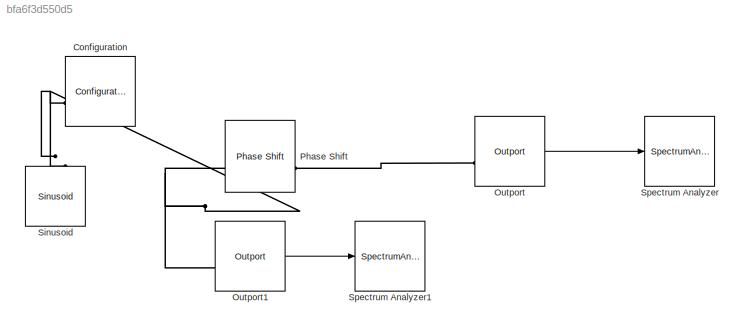
MODEL slx_bfa6f3d550d5
KIND model
CONFIG AbsTol = auto
CONFIG EnableMultiTasking = off
CONFIG FixedStep = auto
CONFIG MaxStep = auto
CONFIG MinStep = auto
CONFIG RelTol = 1e-3
CONFIG SampleTimeConstraint = Unconstrained
CONFIG SolverName = VariableStepAuto
CONFIG StartTime = 0.0
CONFIG StopTime = 1
BLOCK [Reference] Configuration  REF=simrfV2util1/Configuration
  SourceBlock = simrfV2util1/Configuration
  SourceType = Configuration
BLOCK [Reference] Outport  REF=simrfV2util1/Outport
  SourceBlock = simrfV2util1/Outport
  SourceType = Outport
BLOCK [Reference] Outport1  REF=simrfV2util1/Outport
  SourceBlock = simrfV2util1/Outport
  SourceType = Outport
BLOCK [Reference] Phase Shift  REF=simrfV2elements/Phase Shift
  SourceBlock = simrfV2elements/Phase Shift
  SourceType = Phase Shift
BLOCK [Reference] Sinusoid  REF=simrfV2sources1/Sinusoid
  NameLocation = right
  SourceBlock = simrfV2sources1/Sinusoid
  SourceType = Sinusoidal Source
BLOCK [SpectrumAnalyzer] Spectrum Analyzer
  AllowFFTLengthLessThanSamplesPerUpdate = on
  AveragingMethod = Exponential
  GraphicalSettings = {"GraphicalSettings":{"Style":{"BackgroundColor":[0.12941176470588237,0.12941176470588237,0.12941176470588237],"AxesColor":[0,0,0],"LabelsColor":[0.6862745098039216,0.6862745098039216,0.6862745098039216],"PreserveColors":false,"Visible":[true],"LineStyle":["-"],"LineWidth":[1.5],"BarWidth":[0.9],"LineColor":[[1,0.9098039215686274,0.39215686274509803]],"LineFaceAlpha":[1],"LineEdgeAlpha":[1],"Marke...<+945ch>
  Method = Welch
  ScopeFrameLocation = window
  ScopeSpecificationString = spbscopes.SpectrumAnalyzerBlockCfg('CurrentConfiguration', extmgr.ConfigurationSet(extmgr.Configuration('Core','General UI',true),extmgr.Configuration('Core','Source UI',true),extmgr.Configuration('Sources','WiredSimulink',true),extmgr.Configuration('Visuals','Spectrum',true,'AxesProperties',struct('Color',{[0 0 0],[0 0 0]},'XColor',{[0.686274509803922 0.686274509803922 0.686274509803922],[0.68627...<+1369ch>
  Tag = simrfV2util1/Spectrum\nAnalyzer
  Visible = on
  WasSavedAsWebScope = on
  WindowPosition = [718.000000,121.000000,549.000000,500.000000,]
  YLimits = [-151.38927485180284,88.80615695905537]
BLOCK [SpectrumAnalyzer] Spectrum Analyzer1
  AllowFFTLengthLessThanSamplesPerUpdate = on
  AveragingMethod = Exponential
  GraphicalSettings = {"GraphicalSettings":{"Style":{"BackgroundColor":[0.12941176470588237,0.12941176470588237,0.12941176470588237],"AxesColor":[0,0,0],"LabelsColor":[0.6862745098039216,0.6862745098039216,0.6862745098039216],"PreserveColors":false,"Visible":[true],"LineStyle":["-"],"LineWidth":[1.5],"BarWidth":[0.9],"LineColor":[[1,0.9098039215686274,0.39215686274509803]],"LineFaceAlpha":[1],"LineEdgeAlpha":[1],"Marke...<+945ch>
  Method = Welch
  ScopeFrameLocation = window
  ScopeSpecificationString = spbscopes.SpectrumAnalyzerBlockCfg('CurrentConfiguration', extmgr.ConfigurationSet(extmgr.Configuration('Core','General UI',true),extmgr.Configuration('Core','Source UI',true),extmgr.Configuration('Sources','WiredSimulink',true),extmgr.Configuration('Visuals','Spectrum',true,'AxesProperties',struct('Color',{[0 0 0],[0 0 0]},'XColor',{[0.686274509803922 0.686274509803922 0.686274509803922],[0.68627...<+1369ch>
  Tag = simrfV2util1/Spectrum\nAnalyzer
  Visible = on
  WasSavedAsWebScope = on
  WindowPosition = [44.000000,116.000000,563.000000,500.000000,]
  YLimits = [-269.70130684963397,-70.17570874624015]
LINE Outport1:1 -> Spectrum Analyzer1:1
LINE Outport:1 -> Spectrum Analyzer:1
PNET net1: Configuration:LConn1 -- Outport1:LConn1 -- Phase Shift:LConn1 -- Sinusoid:LConn1
PLINE Outport:LConn1 -- Phase Shift:RConn1
note: PNET lines group multi-terminal physical nets as a canonical sorted terminal list (undirected conserving connections); 2-terminal nets keep the pairwise PLINE form
